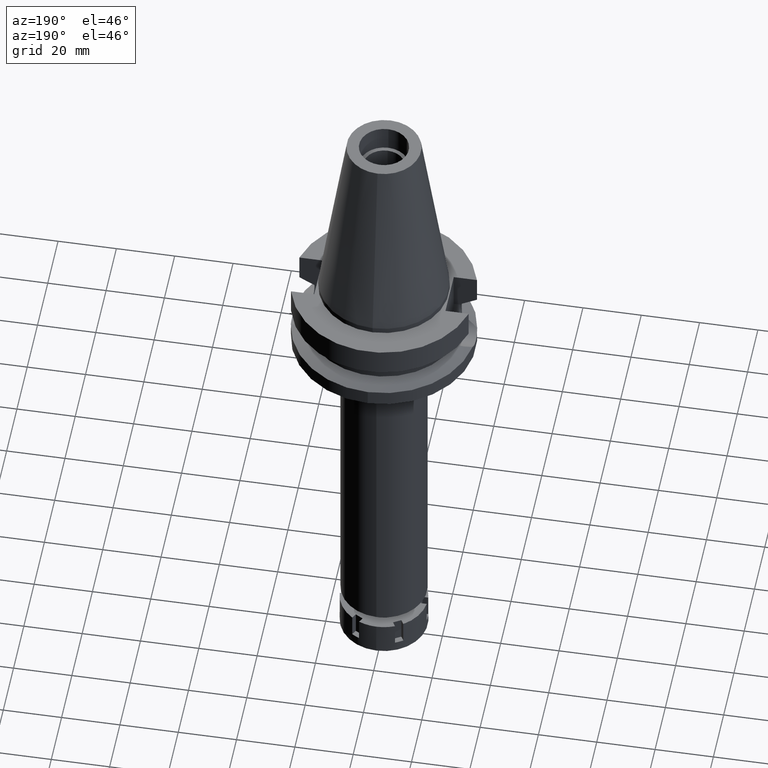
[diagram: clean part render]
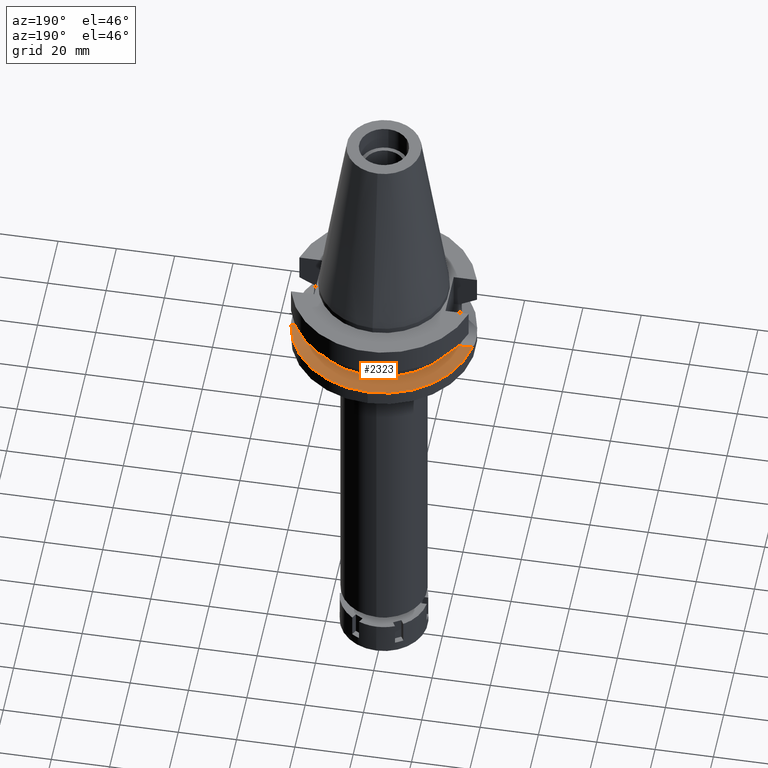
[diagram: same view with one face highlighted and labeled with its STEP entity id]
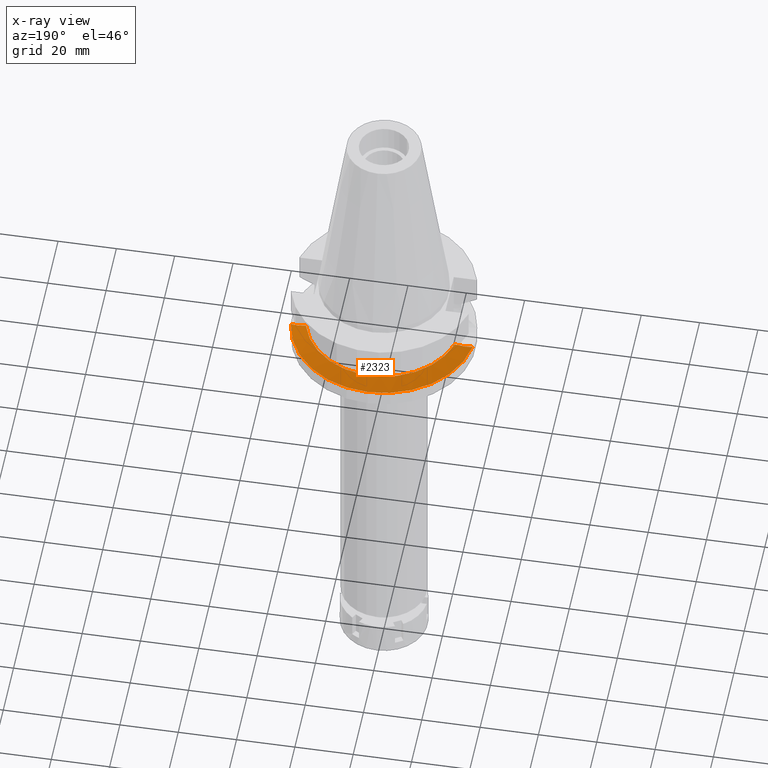
[diagram: x-ray of the same camera — body ghosted, the highlighted face saturated]
A machine part, auxiliary view. The second image highlights one B-rep face of the part: STEP entity #2323.
The next image is the same camera in x-ray: the body ghosted, the highlighted face saturated — about 0% of this face is hidden behind the body in this view.
In plain terms, the highlighted conical surface has half-angle 60 deg.
Its self-contained STEP definition (entity closure, byte-faithful):
#21 = DIRECTION ( 'NONE',  ( 0.0000000000000000000, 0.0000000000000000000, -1.000000000000000000 ) ) ;
#24 = CARTESIAN_POINT ( 'NONE',  ( -25.53175183775000079, 7.097862220092999941, -18.74774300138999905 ) ) ;
#33 = CARTESIAN_POINT ( 'NONE',  ( -28.65198459794212482, 5.974256852342050728, -20.34544873951142208 ) ) ;
#50 = CARTESIAN_POINT ( 'NONE',  ( -26.69526308233595913, 6.752326524881443248, -19.34502462660678290 ) ) ;
#72 = CARTESIAN_POINT ( 'NONE',  ( 28.60287907180562783, 5.996894394576052889, -20.32026808707849597 ) ) ;
#107 = CARTESIAN_POINT ( 'NONE',  ( 28.70646067085325370, 5.949151720919976682, -20.37318318665121097 ) ) ;
#263 = DIRECTION ( 'NONE',  ( 0.0000000000000000000, 1.000000000000000000, 0.0000000000000000000 ) ) ;
#280 = ORIENTED_EDGE ( 'NONE', *, *, #476, .F. ) ;
#336 = CARTESIAN_POINT ( 'NONE',  ( -29.65044312652629799, 5.512450723689639176, -20.85544634343160908 ) ) ;
#371 = DIRECTION ( 'NONE',  ( 0.0000000000000000000, 0.0000000000000000000, -1.000000000000000000 ) ) ;
#375 = CARTESIAN_POINT ( 'NONE',  ( 31.17899877608999759, 4.485536235554000051, -21.63449434733000132 ) ) ;
#476 = EDGE_CURVE ( 'NONE', #499, #2095, #2434, .T. ) ;
#496 = AXIS2_PLACEMENT_3D ( 'NONE', #2401, #2152, #3530 ) ;
#497 = CARTESIAN_POINT ( 'NONE',  ( -27.47916149749393000, 6.467270095415826425, -19.74623094259594325 ) ) ;
#499 = VERTEX_POINT ( 'NONE', #375 ) ;
#681 = CARTESIAN_POINT ( 'NONE',  ( 30.43276923731032113, 5.016818106179553816, -21.25448757906036690 ) ) ;
#796 = CIRCLE ( 'NONE', #2890, 26.50000000000000000 ) ;
#800 = AXIS2_PLACEMENT_3D ( 'NONE', #2618, #21, #1161 ) ;
#932 = FACE_OUTER_BOUND ( 'NONE', #1652, .T. ) ;
#943 = ORIENTED_EDGE ( 'NONE', *, *, #2517, .F. ) ;
#956 = CIRCLE ( 'NONE', #496, 31.50000000000000000 ) ;
#967 = CARTESIAN_POINT ( 'NONE',  ( 31.17899877608999759, 4.485536235554000051, -21.63449434733000132 ) ) ;
#1102 = CARTESIAN_POINT ( 'NONE',  ( -26.13322635299443064, 6.932527182534328425, -19.05674898633970926 ) ) ;
#1161 = DIRECTION ( 'NONE',  ( -0.9898094849552905306, 0.1423979757318985240, 0.0000000000000000000 ) ) ;
#1201 = CONICAL_SURFACE ( 'NONE', #2956, 29.00000000000000000, 1.047197551196400456 ) ;
#1215 = CARTESIAN_POINT ( 'NONE',  ( 29.03132353643619723, 5.794565788362671555, -20.53914155178674150 ) ) ;
#1270 = VERTEX_POINT ( 'NONE', #24 ) ;
#1288 = VERTEX_POINT ( 'NONE', #2859 ) ;
#1423 = CARTESIAN_POINT ( 'NONE',  ( 25.53175183775000079, 7.097862220092999941, -18.74774300138999905 ) ) ;
#1478 = CARTESIAN_POINT ( 'NONE',  ( 26.70453378531899347, 6.775484559133601259, -19.35025671005143977 ) ) ;
#1503 = CARTESIAN_POINT ( 'NONE',  ( 29.21068445584835160, 5.704277147083771204, -20.63075783949291520 ) ) ;
#1510 = CARTESIAN_POINT ( 'NONE',  ( 0.0000000000000000000, 0.0000000000000000000, -20.19111867435999841 ) ) ;
#1528 = ORIENTED_EDGE ( 'NONE', *, *, #1678, .F. ) ;
#1542 = VERTEX_POINT ( 'NONE', #2287 ) ;
#1652 = EDGE_LOOP ( 'NONE', ( #1528, #280, #943, #2976, #2619 ) ) ;
#1678 = EDGE_CURVE ( 'NONE', #2095, #1270, #796, .T. ) ;
#1757 = CARTESIAN_POINT ( 'NONE',  ( 30.82500782773820802, 4.754098068982061776, -21.45427969342922836 ) ) ;
#1773 = CARTESIAN_POINT ( 'NONE',  ( 28.65140175520512855, 5.974619388510384432, -20.34505598618030930 ) ) ;
#1908 = B_SPLINE_CURVE_WITH_KNOTS ( 'NONE', 3,
 ( #3582, #1102, #50, #497, #3340, #2460, #3321, #3041, #2161, #2562, #3298, #33, #336, #3136, #3600 ),
 .UNSPECIFIED., .F., .F.,
 ( 4, 2, 2, 1, 1, 1, 2, 2, 4 ),
 ( 0.0000000000000000000, 0.2500000000000075495, 0.3750000000000109912, 0.4375000000000127676, 0.4687500000000139333, 0.4843750000000145439, 0.4921875000000149325, 0.5000000000000152101, 1.000000000000000000 ),
 .UNSPECIFIED. ) ;
#1995 = CARTESIAN_POINT ( 'NONE',  ( 0.0000000000000000000, 0.0000000000000000000, -18.74774300138999905 ) ) ;
#2049 = DIRECTION ( 'NONE',  ( 0.0000000000000000000, -1.000000000000000000, 0.0000000000000000000 ) ) ;
#2095 = VERTEX_POINT ( 'NONE', #1423 ) ;
#2152 = DIRECTION ( 'NONE',  ( 0.0000000000000000000, 0.0000000000000000000, -1.000000000000000000 ) ) ;
#2161 = CARTESIAN_POINT ( 'NONE',  ( -28.56974182235805415, 6.011971305422042278, -20.30344240085333141 ) ) ;
#2287 = CARTESIAN_POINT ( 'NONE',  ( -31.17899877608999759, 4.485536235554000051, -21.63449434733000132 ) ) ;
#2323 = ADVANCED_FACE ( 'NONE', ( #932 ), #1201, .T. ) ;
#2352 = CARTESIAN_POINT ( 'NONE',  ( 28.62772103684104863, 5.985506319499169336, -20.33295862377726237 ) ) ;
#2401 = CARTESIAN_POINT ( 'NONE',  ( 0.0000000000000000000, 0.0000000000000000000, -21.63449434733000132 ) ) ;
#2434 = B_SPLINE_CURVE_WITH_KNOTS ( 'NONE', 3,
 ( #967, #1757, #681, #3459, #3188, #1503, #1215, #2926, #107, #1773, #2352, #2614, #72, #2645, #1478, #2592 ),
 .UNSPECIFIED., .F., .F.,
 ( 4, 2, 2, 1, 1, 1, 1, 2, 2, 4 ),
 ( 0.0000000000000000000, 0.2499999999999849010, 0.3749999999999773515, 0.4374999999999733546, 0.4687499999999707456, 0.4843749999999700240, 0.4921874999999696354, 0.4960937499999696909, 0.4999999999999698019, 1.000000000000000000 ),
 .UNSPECIFIED. ) ;
#2460 = CARTESIAN_POINT ( 'NONE',  ( -28.09297239088935783, 6.220720642759368424, -20.05993274072317334 ) ) ;
#2502 = DIRECTION ( 'NONE',  ( 0.0000000000000000000, 0.0000000000000000000, 1.000000000000000000 ) ) ;
#2517 = EDGE_CURVE ( 'NONE', #1288, #499, #956, .T. ) ;
#2562 = CARTESIAN_POINT ( 'NONE',  ( -28.61168750961379459, 5.992779276858374082, -20.32486634753027843 ) ) ;
#2592 = CARTESIAN_POINT ( 'NONE',  ( 25.53175183775000079, 7.097862220092999941, -18.74774300138999905 ) ) ;
#2614 = CARTESIAN_POINT ( 'NONE',  ( 28.61191521565850948, 5.992758071266329090, -20.32488419831858906 ) ) ;
#2618 = CARTESIAN_POINT ( 'NONE',  ( 0.0000000000000000000, 0.0000000000000000000, -21.63449434733000132 ) ) ;
#2619 = ORIENTED_EDGE ( 'NONE', *, *, #3099, .F. ) ;
#2645 = CARTESIAN_POINT ( 'NONE',  ( 27.72597696642440113, 6.397582723671390248, -19.87230427376377051 ) ) ;
#2859 = CARTESIAN_POINT ( 'NONE',  ( 0.0000000000000000000, 31.50000000000000000, -21.63449434733000132 ) ) ;
#2871 = EDGE_CURVE ( 'NONE', #1542, #1288, #3014, .T. ) ;
#2890 = AXIS2_PLACEMENT_3D ( 'NONE', #1995, #2502, #263 ) ;
#2926 = CARTESIAN_POINT ( 'NONE',  ( 28.81579412667725393, 5.897959426164192109, -20.42903730043655131 ) ) ;
#2956 = AXIS2_PLACEMENT_3D ( 'NONE', #1510, #371, #2049 ) ;
#2976 = ORIENTED_EDGE ( 'NONE', *, *, #2871, .F. ) ;
#3014 = CIRCLE ( 'NONE', #800, 31.50000000000001421 ) ;
#3041 = CARTESIAN_POINT ( 'NONE',  ( -28.47105976937593397, 6.056636346972959828, -20.25304215216998927 ) ) ;
#3099 = EDGE_CURVE ( 'NONE', #1270, #1542, #1908, .T. ) ;
#3136 = CARTESIAN_POINT ( 'NONE',  ( -30.48766088576234168, 5.010032616630118341, -21.28253840265173125 ) ) ;
#3188 = CARTESIAN_POINT ( 'NONE',  ( 29.56223486178338433, 5.521648346356514026, -20.81029428834316874 ) ) ;
#3298 = CARTESIAN_POINT ( 'NONE',  ( -28.63957427419202872, 5.979973765310347744, -20.33910989692699900 ) ) ;
#3321 = CARTESIAN_POINT ( 'NONE',  ( -28.27046053253687674, 6.145479337511119411, -20.15059221060121430 ) ) ;
#3340 = CARTESIAN_POINT ( 'NONE',  ( -27.73060152273752976, 6.369784197261488146, -19.87478029968705684 ) ) ;
#3459 = CARTESIAN_POINT ( 'NONE',  ( 29.78703988855439277, 5.397161433807887931, -20.92505484022290219 ) ) ;
#3530 = DIRECTION ( 'NONE',  ( 0.0000000000000000000, 1.000000000000000000, 0.0000000000000000000 ) ) ;
#3582 = CARTESIAN_POINT ( 'NONE',  ( -25.53175183775000079, 7.097862220092999941, -18.74774300138999905 ) ) ;
#3600 = CARTESIAN_POINT ( 'NONE',  ( -31.17899877608999759, 4.485536235554000051, -21.63449434733000132 ) ) ;